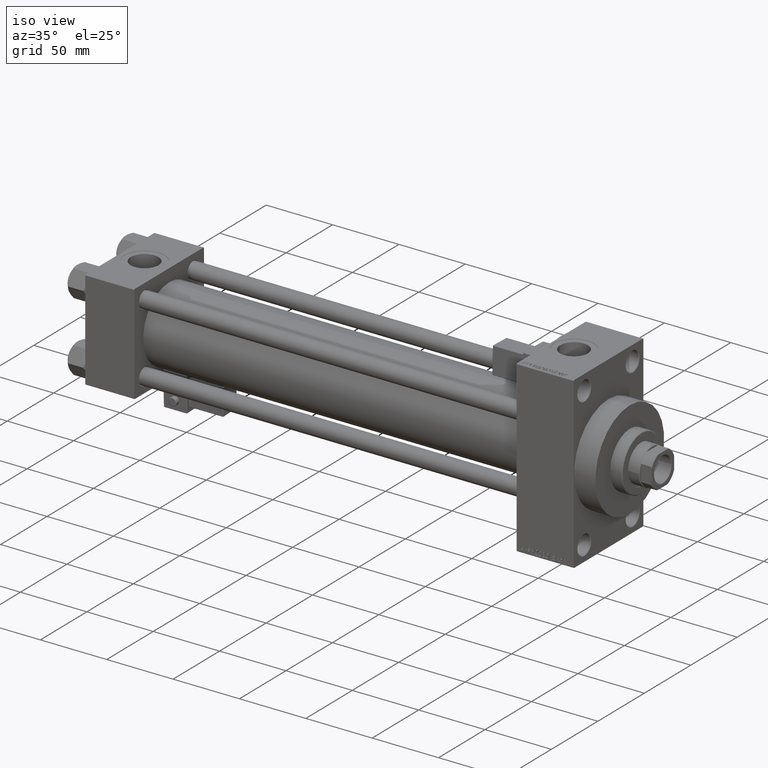
[diagram: clean part render]
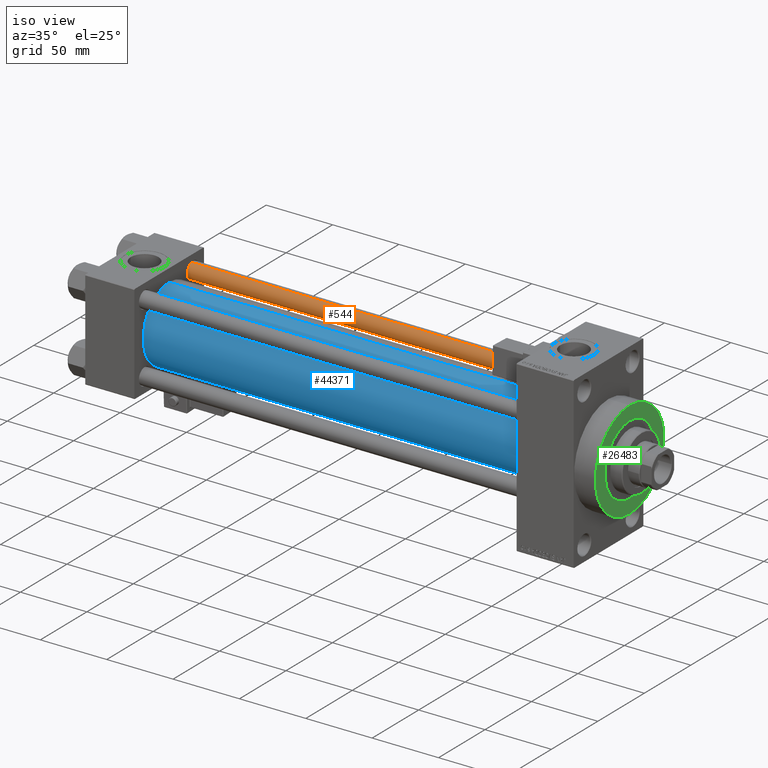
[diagram: same view with three faces highlighted in distinct colors, each labeled with its STEP entity id]
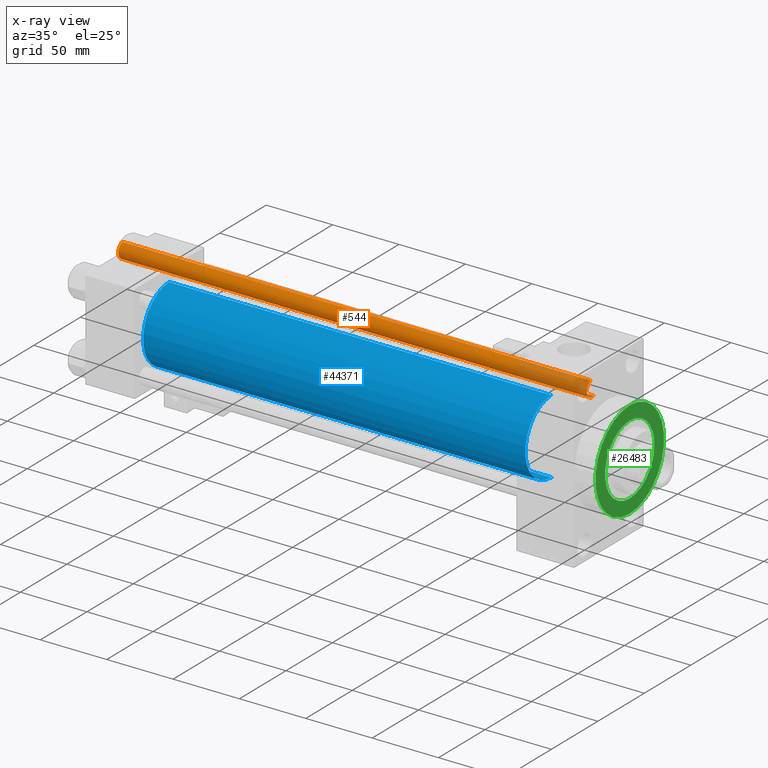
[diagram: x-ray of the same camera — body ghosted, the three highlighted faces saturated]
A machine part, iso view with three faces highlighted in distinct colors.
The next image is the same camera in x-ray (body ghosted, the three faces saturated) — at least one of them is partly hidden behind the body in this view.
Their STEP definitions:

[orange] entity #544 — the highlighted cylindrical surface (edge-blend (fillet) strip) has radius 6 mm, axis along (-1, -0, 0).
#544 = ADVANCED_FACE ( 'NONE', ( #2060 ), #14052, .T. ) ;
#2060 = FACE_OUTER_BOUND ( 'NONE', #10276, .T. ) ;
#2259 = VECTOR ( 'NONE', #4396, 1000.000000000000000 ) ;
#3211 = CARTESIAN_POINT ( 'NONE',  ( 0.000000000000000000, 0.000000000000000000, 353.5000000000000000 ) ) ;
#4396 = DIRECTION ( 'NONE',  ( -0.000000000000000000, -0.000000000000000000, -1.000000000000000000 ) ) ;
#7953 = VERTEX_POINT ( 'NONE', #38471 ) ;
#8413 = EDGE_CURVE ( 'NONE', #7953, #38264, #31052, .T. ) ;
#10141 = DIRECTION ( 'NONE',  ( -0.000000000000000000, -0.000000000000000000, -1.000000000000000000 ) ) ;
#10276 = EDGE_LOOP ( 'NONE', ( #23137, #30792, #18285, #50656 ) ) ;
#10818 = VECTOR ( 'NONE', #26709, 1000.000000000000000 ) ;
#13331 = DIRECTION ( 'NONE',  ( -0.000000000000000000, -0.000000000000000000, 1.000000000000000000 ) ) ;
#13988 = DIRECTION ( 'NONE',  ( 1.000000000000000000, 0.000000000000000000, 0.000000000000000000 ) ) ;
#14052 = CYLINDRICAL_SURFACE ( 'NONE', #50166, 6.000000000000000888 ) ;
#18235 = CIRCLE ( 'NONE', #24862, 6.000000000000000888 ) ;
#18285 = ORIENTED_EDGE ( 'NONE', *, *, #42419, .T. ) ;
#19563 = CIRCLE ( 'NONE', #48645, 6.000000000000000888 ) ;
#23019 = VERTEX_POINT ( 'NONE', #41535 ) ;
#23137 = ORIENTED_EDGE ( 'NONE', *, *, #8413, .F. ) ;
#24862 = AXIS2_PLACEMENT_3D ( 'NONE', #48213, #13331, #25566 ) ;
#25444 = DIRECTION ( 'NONE',  ( 0.000000000000000000, 0.000000000000000000, -1.000000000000000000 ) ) ;
#25566 = DIRECTION ( 'NONE',  ( 1.000000000000000000, 0.000000000000000000, 0.000000000000000000 ) ) ;
#26709 = DIRECTION ( 'NONE',  ( -0.000000000000000000, -0.000000000000000000, -1.000000000000000000 ) ) ;
#28867 = EDGE_CURVE ( 'NONE', #7953, #45852, #19563, .T. ) ;
#29932 = CARTESIAN_POINT ( 'NONE',  ( 0.000000000000000000, 0.000000000000000000, 354.0000000000000000 ) ) ;
#30355 = CARTESIAN_POINT ( 'NONE',  ( -6.000000000000000888, 0.000000000000000000, 354.0000000000000000 ) ) ;
#30792 = ORIENTED_EDGE ( 'NONE', *, *, #28867, .T. ) ;
#31052 = LINE ( 'NONE', #34706, #2259 ) ;
#34706 = CARTESIAN_POINT ( 'NONE',  ( 6.000000000000000888, 7.347880794884120722E-16, 354.0000000000000000 ) ) ;
#36139 = EDGE_CURVE ( 'NONE', #23019, #38264, #18235, .T. ) ;
#38264 = VERTEX_POINT ( 'NONE', #47307 ) ;
#38471 = CARTESIAN_POINT ( 'NONE',  ( 6.000000000000000888, 7.347880794884120722E-16, 353.5000000000000000 ) ) ;
#41535 = CARTESIAN_POINT ( 'NONE',  ( -6.000000000000000888, 0.000000000000000000, 0.5000000000000559552 ) ) ;
#41896 = DIRECTION ( 'NONE',  ( -1.000000000000000000, 0.000000000000000000, 0.000000000000000000 ) ) ;
#42419 = EDGE_CURVE ( 'NONE', #45852, #23019, #49624, .T. ) ;
#45852 = VERTEX_POINT ( 'NONE', #48665 ) ;
#47307 = CARTESIAN_POINT ( 'NONE',  ( 6.000000000000000888, 7.347880794884120722E-16, 0.5000000000000559552 ) ) ;
#48213 = CARTESIAN_POINT ( 'NONE',  ( 0.000000000000000000, 0.000000000000000000, 0.5000000000000559552 ) ) ;
#48645 = AXIS2_PLACEMENT_3D ( 'NONE', #3211, #25444, #13988 ) ;
#48665 = CARTESIAN_POINT ( 'NONE',  ( -6.000000000000000888, 0.000000000000000000, 353.5000000000000000 ) ) ;
#49624 = LINE ( 'NONE', #30355, #10818 ) ;
#50166 = AXIS2_PLACEMENT_3D ( 'NONE', #29932, #10141, #41896 ) ;
#50656 = ORIENTED_EDGE ( 'NONE', *, *, #36139, .T. ) ;

[blue] entity #44371 — the highlighted cylindrical surface (partial cylindrical patch) has radius 28 mm, axis along (-1, -0, -0).
#1533 = DIRECTION ( 'NONE',  ( 1.000000000000000000, -0.000000000000000000, 0.000000000000000000 ) ) ;
#3204 = ORIENTED_EDGE ( 'NONE', *, *, #49539, .F. ) ;
#3791 = VERTEX_POINT ( 'NONE', #25680 ) ;
#4044 = ORIENTED_EDGE ( 'NONE', *, *, #8592, .T. ) ;
#6223 = CYLINDRICAL_SURFACE ( 'NONE', #9244, 28.00000000000000000 ) ;
#6333 = LINE ( 'NONE', #49556, #14023 ) ;
#6530 = CARTESIAN_POINT ( 'NONE',  ( 324.9999999999999432, -2.602085213965210642E-15, 28.00000000000000000 ) ) ;
#7331 = CARTESIAN_POINT ( 'NONE',  ( 36.99999999999997868, -2.602085213965210642E-15, 28.00000000000000000 ) ) ;
#7996 = EDGE_LOOP ( 'NONE', ( #39629, #3204, #13622, #4044 ) ) ;
#8592 = EDGE_CURVE ( 'NONE', #15157, #20044, #9782, .T. ) ;
#9244 = AXIS2_PLACEMENT_3D ( 'NONE', #22124, #13527, #13789 ) ;
#9782 = CIRCLE ( 'NONE', #38846, 28.00000000000000000 ) ;
#11891 = AXIS2_PLACEMENT_3D ( 'NONE', #36934, #44245, #32271 ) ;
#13527 = DIRECTION ( 'NONE',  ( -1.000000000000000000, -0.000000000000000000, -0.000000000000000000 ) ) ;
#13622 = ORIENTED_EDGE ( 'NONE', *, *, #45804, .T. ) ;
#13789 = DIRECTION ( 'NONE',  ( 0.000000000000000000, 0.000000000000000000, 1.000000000000000000 ) ) ;
#14023 = VECTOR ( 'NONE', #21712, 1000.000000000000000 ) ;
#15157 = VERTEX_POINT ( 'NONE', #7331 ) ;
#20044 = VERTEX_POINT ( 'NONE', #44777 ) ;
#20565 = CARTESIAN_POINT ( 'NONE',  ( 36.99999999999997868, -2.602085213965210642E-15, 0.000000000000000000 ) ) ;
#21339 = DIRECTION ( 'NONE',  ( -1.000000000000000000, -0.000000000000000000, -0.000000000000000000 ) ) ;
#21712 = DIRECTION ( 'NONE',  ( -1.000000000000000000, -0.000000000000000000, -0.000000000000000000 ) ) ;
#22124 = CARTESIAN_POINT ( 'NONE',  ( 324.9999999999999432, -2.602085213965210642E-15, 0.000000000000000000 ) ) ;
#25680 = CARTESIAN_POINT ( 'NONE',  ( 324.9999999999999432, 8.269258236473784371E-16, -28.00000000000000000 ) ) ;
#25764 = CARTESIAN_POINT ( 'NONE',  ( 324.9999999999999432, -2.602085213965210642E-15, 28.00000000000000000 ) ) ;
#28501 = VECTOR ( 'NONE', #21339, 1000.000000000000000 ) ;
#30598 = VERTEX_POINT ( 'NONE', #6530 ) ;
#32271 = DIRECTION ( 'NONE',  ( 0.000000000000000000, 0.000000000000000000, -1.000000000000000000 ) ) ;
#36417 = DIRECTION ( 'NONE',  ( 0.000000000000000000, 0.000000000000000000, 1.000000000000000000 ) ) ;
#36847 = CIRCLE ( 'NONE', #11891, 28.00000000000000000 ) ;
#36934 = CARTESIAN_POINT ( 'NONE',  ( 324.9999999999999432, -2.602085213965210642E-15, 0.000000000000000000 ) ) ;
#37887 = EDGE_CURVE ( 'NONE', #3791, #20044, #6333, .T. ) ;
#38846 = AXIS2_PLACEMENT_3D ( 'NONE', #20565, #1533, #36417 ) ;
#39629 = ORIENTED_EDGE ( 'NONE', *, *, #37887, .F. ) ;
#40848 = LINE ( 'NONE', #25764, #28501 ) ;
#44245 = DIRECTION ( 'NONE',  ( 1.000000000000000000, 0.000000000000000000, 0.000000000000000000 ) ) ;
#44371 = ADVANCED_FACE ( 'NONE', ( #46059 ), #6223, .T. ) ;
#44777 = CARTESIAN_POINT ( 'NONE',  ( 36.99999999999997868, 8.269258236473784371E-16, -28.00000000000000000 ) ) ;
#45804 = EDGE_CURVE ( 'NONE', #30598, #15157, #40848, .T. ) ;
#46059 = FACE_OUTER_BOUND ( 'NONE', #7996, .T. ) ;
#49539 = EDGE_CURVE ( 'NONE', #30598, #3791, #36847, .T. ) ;
#49556 = CARTESIAN_POINT ( 'NONE',  ( 324.9999999999999432, 8.269258236473784371E-16, -28.00000000000000000 ) ) ;

[green] entity #26483 — the highlighted planar face has unit normal (1, 0, 0).
#1743 = EDGE_CURVE ( 'NONE', #25313, #15625, #41918, .T. ) ;
#2048 = AXIS2_PLACEMENT_3D ( 'NONE', #10115, #45257, #6456 ) ;
#2148 = CIRCLE ( 'NONE', #39560, 26.50000000000000355 ) ;
#4237 = CARTESIAN_POINT ( 'NONE',  ( 383.9999999999999432, 0.000000000000000000, 0.000000000000000000 ) ) ;
#4894 = CARTESIAN_POINT ( 'NONE',  ( 383.9999999999999432, 4.531193156845206793E-15, -37.00000000000000000 ) ) ;
#5404 = EDGE_CURVE ( 'NONE', #37698, #37375, #2148, .T. ) ;
#5436 = CARTESIAN_POINT ( 'NONE',  ( 383.9999999999999432, 0.000000000000000000, 0.000000000000000000 ) ) ;
#6392 = CARTESIAN_POINT ( 'NONE',  ( 383.9999999999999432, 0.000000000000000000, 0.000000000000000000 ) ) ;
#6456 = DIRECTION ( 'NONE',  ( 0.000000000000000000, 0.000000000000000000, -1.000000000000000000 ) ) ;
#6828 = ORIENTED_EDGE ( 'NONE', *, *, #1743, .T. ) ;
#8944 = CARTESIAN_POINT ( 'NONE',  ( 383.9999999999999432, 3.245314017740486554E-15, 26.50000000000000355 ) ) ;
#9466 = EDGE_LOOP ( 'NONE', ( #6828, #41584 ) ) ;
#9798 = DIRECTION ( 'NONE',  ( 0.000000000000000000, 0.000000000000000000, -1.000000000000000000 ) ) ;
#10115 = CARTESIAN_POINT ( 'NONE',  ( 383.9999999999999432, 0.000000000000000000, 0.000000000000000000 ) ) ;
#12189 = CARTESIAN_POINT ( 'NONE',  ( 383.9999999999999432, 0.000000000000000000, 0.000000000000000000 ) ) ;
#15625 = VERTEX_POINT ( 'NONE', #4894 ) ;
#19488 = AXIS2_PLACEMENT_3D ( 'NONE', #4237, #20140, #39392 ) ;
#20140 = DIRECTION ( 'NONE',  ( 1.000000000000000000, 0.000000000000000000, 0.000000000000000000 ) ) ;
#22554 = EDGE_CURVE ( 'NONE', #37375, #37698, #23604, .T. ) ;
#23604 = CIRCLE ( 'NONE', #19488, 26.50000000000000355 ) ;
#25207 = FACE_BOUND ( 'NONE', #25503, .T. ) ;
#25313 = VERTEX_POINT ( 'NONE', #42741 ) ;
#25503 = EDGE_LOOP ( 'NONE', ( #45572, #40934 ) ) ;
#25755 = DIRECTION ( 'NONE',  ( 1.000000000000000000, 0.000000000000000000, 0.000000000000000000 ) ) ;
#26483 = ADVANCED_FACE ( 'NONE', ( #25207, #29378 ), #46031, .T. ) ;
#29378 = FACE_OUTER_BOUND ( 'NONE', #9466, .T. ) ;
#31439 = CIRCLE ( 'NONE', #34754, 37.00000000000000000 ) ;
#31970 = DIRECTION ( 'NONE',  ( 0.000000000000000000, 0.000000000000000000, -1.000000000000000000 ) ) ;
#33812 = EDGE_CURVE ( 'NONE', #15625, #25313, #31439, .T. ) ;
#34754 = AXIS2_PLACEMENT_3D ( 'NONE', #6392, #49616, #9798 ) ;
#35107 = DIRECTION ( 'NONE',  ( 1.000000000000000000, 0.000000000000000000, 0.000000000000000000 ) ) ;
#37375 = VERTEX_POINT ( 'NONE', #46032 ) ;
#37698 = VERTEX_POINT ( 'NONE', #8944 ) ;
#39392 = DIRECTION ( 'NONE',  ( 0.000000000000000000, 0.000000000000000000, -1.000000000000000000 ) ) ;
#39560 = AXIS2_PLACEMENT_3D ( 'NONE', #5436, #25755, #41623 ) ;
#40934 = ORIENTED_EDGE ( 'NONE', *, *, #5404, .F. ) ;
#41584 = ORIENTED_EDGE ( 'NONE', *, *, #33812, .T. ) ;
#41623 = DIRECTION ( 'NONE',  ( 0.000000000000000000, 0.000000000000000000, -1.000000000000000000 ) ) ;
#41918 = CIRCLE ( 'NONE', #46885, 37.00000000000000000 ) ;
#42741 = CARTESIAN_POINT ( 'NONE',  ( 383.9999999999999432, 0.000000000000000000, 37.00000000000000000 ) ) ;
#45257 = DIRECTION ( 'NONE',  ( 1.000000000000000000, 0.000000000000000000, 0.000000000000000000 ) ) ;
#45572 = ORIENTED_EDGE ( 'NONE', *, *, #22554, .F. ) ;
#46031 = PLANE ( 'NONE',  #2048 ) ;
#46032 = CARTESIAN_POINT ( 'NONE',  ( 383.9999999999999432, 0.000000000000000000, -26.50000000000000355 ) ) ;
#46885 = AXIS2_PLACEMENT_3D ( 'NONE', #12189, #35107, #31970 ) ;
#49616 = DIRECTION ( 'NONE',  ( 1.000000000000000000, 0.000000000000000000, 0.000000000000000000 ) ) ;